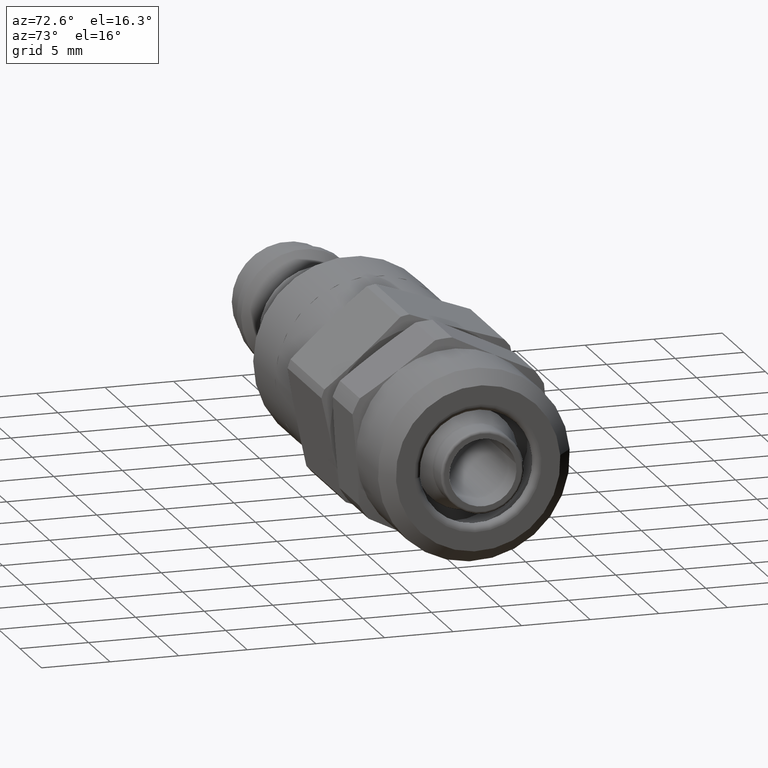
[diagram: clean part render]
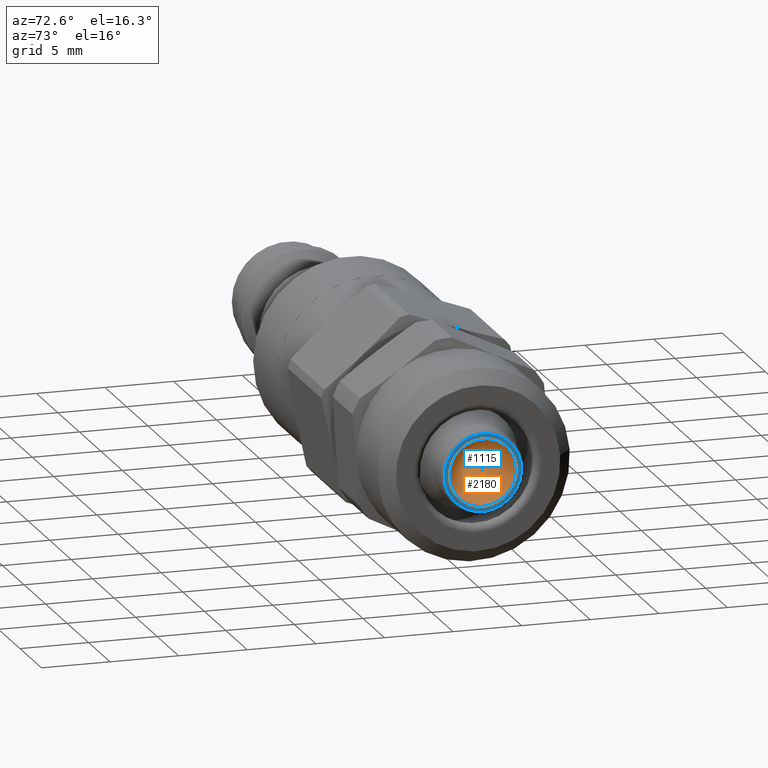
[diagram: same view with the hole feature highlighted: cylindrical wall and planar end face, labeled with their STEP entity ids]
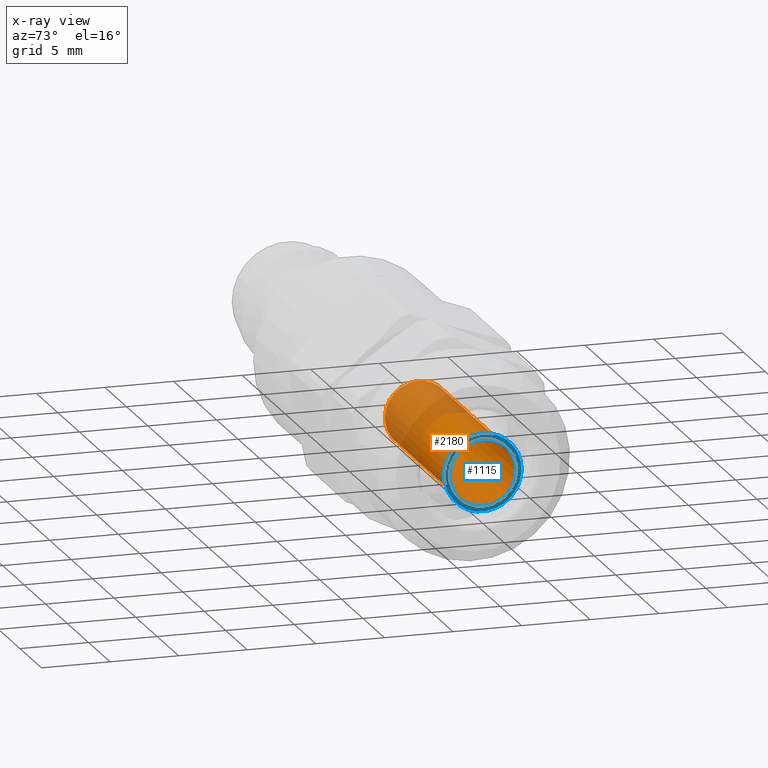
[diagram: x-ray of the same camera — body ghosted, the hole faces saturated]
A machine part, auxiliary view. The highlighted faces form one hole feature of diameter 4.9 mm: the cylindrical wall (entity #2180, orange) and its adjacent planar end face (entity #1115, blue) — they share a circular edge in the B-rep.
The next image is the same camera in x-ray (body ghosted, the hole faces saturated) — the bore reads through the body.
Wall:
#1104=CARTESIAN_POINT('',(0.0,2.449999999999999,0.0));
#1105=VERTEX_POINT('',#1104);
#1106=CARTESIAN_POINT('',(0.0,0.0,0.0));
#1107=DIRECTION('',(1.0,0.0,0.0));
#1108=DIRECTION('',(0.0,1.0,0.0));
#1109=AXIS2_PLACEMENT_3D('',#1106,#1107,#1108);
#1110=CIRCLE('',#1109,2.449999999999999);
#1111=EDGE_CURVE('',#1105,#1105,#1110,.T.);
#2157=CARTESIAN_POINT('',(15.0,2.450000000000001,0.0));
#2158=VERTEX_POINT('',#2157);
#2159=CARTESIAN_POINT('',(15.0,0.0,0.0));
#2160=DIRECTION('',(1.0,0.0,0.0));
#2161=DIRECTION('',(0.0,1.0,0.0));
#2162=AXIS2_PLACEMENT_3D('',#2159,#2160,#2161);
#2163=CIRCLE('',#2162,2.450000000000001);
#2164=EDGE_CURVE('',#2158,#2158,#2163,.T.);
#2169=CARTESIAN_POINT('',(7.5,0.0,0.0));
#2170=DIRECTION('',(1.0,0.0,0.0));
#2171=DIRECTION('',(0.0,1.0,0.0));
#2172=AXIS2_PLACEMENT_3D('',#2169,#2170,#2171);
#2173=CYLINDRICAL_SURFACE('',#2172,2.45);
#2174=ORIENTED_EDGE('',*,*,#1111,.F.);
#2175=EDGE_LOOP('',(#2174));
#2176=FACE_OUTER_BOUND('',#2175,.T.);
#2177=ORIENTED_EDGE('',*,*,#2164,.T.);
#2178=EDGE_LOOP('',(#2177));
#2179=FACE_BOUND('',#2178,.T.);
#2180=ADVANCED_FACE('',(#2176,#2179),#2173,.F.);
End face:
#1053=CARTESIAN_POINT('',(0.0,2.825,0.0));
#1054=VERTEX_POINT('',#1053);
#1055=CARTESIAN_POINT('',(0.0,0.0,0.0));
#1056=DIRECTION('',(1.0,0.0,0.0));
#1057=DIRECTION('',(0.0,-1.0,0.0));
#1058=AXIS2_PLACEMENT_3D('',#1055,#1056,#1057);
#1059=CIRCLE('',#1058,2.825);
#1060=EDGE_CURVE('',#1054,#1054,#1059,.T.);
#1096=CARTESIAN_POINT('',(0.0,2.737499999999999,0.0));
#1097=DIRECTION('',(-1.0,0.0,0.0));
#1098=DIRECTION('',(0.0,0.0,1.0));
#1099=AXIS2_PLACEMENT_3D('',#1096,#1097,#1098);
#1100=PLANE('',#1099);
#1101=ORIENTED_EDGE('',*,*,#1060,.F.);
#1102=EDGE_LOOP('',(#1101));
#1103=FACE_OUTER_BOUND('',#1102,.T.);
#1104=CARTESIAN_POINT('',(0.0,2.449999999999999,0.0));
#1105=VERTEX_POINT('',#1104);
#1106=CARTESIAN_POINT('',(0.0,0.0,0.0));
#1107=DIRECTION('',(1.0,0.0,0.0));
#1108=DIRECTION('',(0.0,1.0,0.0));
#1109=AXIS2_PLACEMENT_3D('',#1106,#1107,#1108);
#1110=CIRCLE('',#1109,2.449999999999999);
#1111=EDGE_CURVE('',#1105,#1105,#1110,.T.);
#1112=ORIENTED_EDGE('',*,*,#1111,.T.);
#1113=EDGE_LOOP('',(#1112));
#1114=FACE_BOUND('',#1113,.T.);
#1115=ADVANCED_FACE('',(#1103,#1114),#1100,.T.);